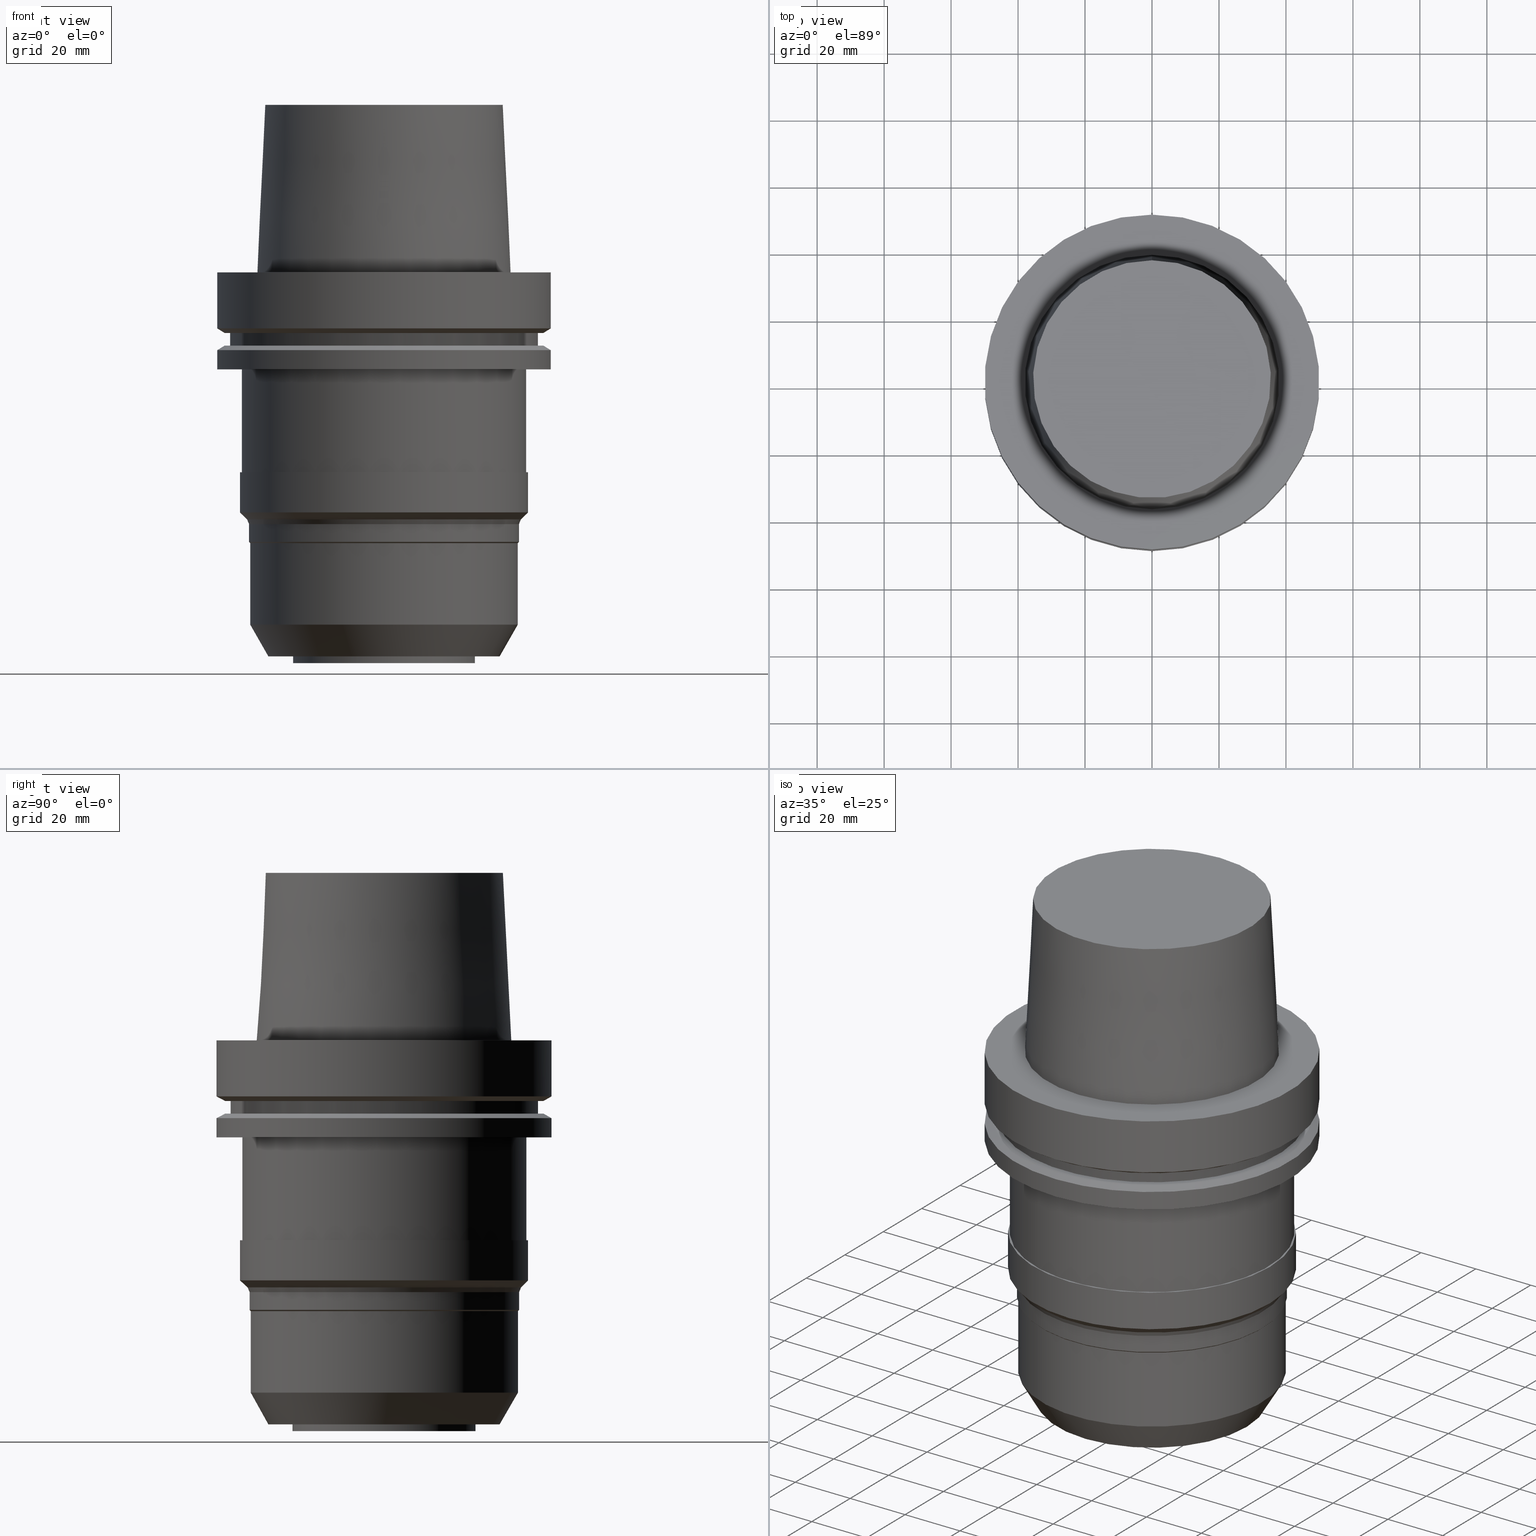
[diagram: canonical four-view strip — front | top / right | iso, engineering-drawing reading convention]
A machine part, canonical four-view strip (front | top / right | iso — engineering-drawing reading convention). The complete STEP part file that produces these views, byte-faithful:
ISO-10303-21;
HEADER;
FILE_DESCRIPTION((''),'1');
FILE_NAME('V:/90_\X2\53D65F9730C730FC30BF\X0\/00_\X2\6DE18DEF30C730FC30BF\X0\/ALL/HSK-BKUS\X2\52A05DE556F3\X0\_201801/HSK-A100-MEGADS/HSK-A100-MEGA1.250DS-4.5.stp','2018-02-01T04:57:53',(''),(''),'Spatial Interop R21 SP3','Kubotek KeyCreator 2011 V10.0.2 (22737)',' ');
FILE_SCHEMA(('automotive_design'));
ENDSEC;
DATA;
#1=MECHANICAL_DESIGN_GEOMETRIC_PRESENTATION_REPRESENTATION(' ',(#10,#11,#12,#13,#14,#15,#16,#17,#18,#19,#20,#21,#22,#23,#24,#25,#26,#27,#28,#29,#30,#31,#32,#33,#34,#35,#36,#37,#38,#39,#40,#41,#42,#43,#44,#45,#46,#47,#48,#49,#50,#51,#52,#53,#54,#55),#6);
#2=PRODUCT_DEFINITION_CONTEXT('',#56,'design');
#3=APPLICATION_PROTOCOL_DEFINITION('INTERNATIONAL STANDARD','automotive_design',1994,#56);
#4=PRODUCT_CATEGORY_RELATIONSHIP('NONE','NONE',#57,#58);
#5=SHAPE_DEFINITION_REPRESENTATION(#59,#60);
#6= (GEOMETRIC_REPRESENTATION_CONTEXT(3)GLOBAL_UNCERTAINTY_ASSIGNED_CONTEXT((#63))GLOBAL_UNIT_ASSIGNED_CONTEXT((#65,#66,#67))REPRESENTATION_CONTEXT('NONE','WORKSPACE'));
#10=STYLED_ITEM('',(#69,#70),#71);
#11=STYLED_ITEM('',(#72,#73),#74);
#12=STYLED_ITEM('',(#75),#76);
#13=STYLED_ITEM('',(#77),#78);
#14=STYLED_ITEM('',(#79,#80),#81);
#15=STYLED_ITEM('',(#82,#83),#84);
#16=STYLED_ITEM('',(#85,#86),#87);
#17=STYLED_ITEM('',(#88),#89);
#18=STYLED_ITEM('',(#90),#91);
#19=STYLED_ITEM('',(#92,#93),#94);
#20=STYLED_ITEM('',(#95),#96);
#21=STYLED_ITEM('',(#97,#98),#99);
#22=STYLED_ITEM('',(#100,#101),#102);
#23=STYLED_ITEM('',(#103,#104),#105);
#24=STYLED_ITEM('',(#106),#107);
#25=STYLED_ITEM('',(#108),#109);
#26=STYLED_ITEM('',(#110),#111);
#27=STYLED_ITEM('',(#112,#113),#114);
#28=STYLED_ITEM('',(#115,#116),#117);
#29=STYLED_ITEM('',(#118,#119),#120);
#30=STYLED_ITEM('',(#121,#122),#123);
#31=STYLED_ITEM('',(#124,#125),#126);
#32=STYLED_ITEM('',(#127,#128),#129);
#33=STYLED_ITEM('',(#130),#131);
#34=STYLED_ITEM('',(#132),#133);
#35=STYLED_ITEM('',(#134,#135),#136);
#36=STYLED_ITEM('',(#137,#138),#139);
#37=STYLED_ITEM('',(#140),#141);
#38=STYLED_ITEM('',(#142),#143);
#39=STYLED_ITEM('',(#144),#145);
#40=STYLED_ITEM('',(#146),#147);
#41=STYLED_ITEM('',(#148),#149);
#42=STYLED_ITEM('',(#150),#151);
#43=STYLED_ITEM('',(#152),#153);
#44=STYLED_ITEM('',(#154,#155),#156);
#45=STYLED_ITEM('',(#157,#158),#159);
#46=STYLED_ITEM('',(#160,#161),#162);
#47=STYLED_ITEM('',(#163),#164);
#48=STYLED_ITEM('',(#165,#166),#167);
#49=STYLED_ITEM('',(#168),#169);
#50=STYLED_ITEM('',(#170),#171);
#51=STYLED_ITEM('',(#172,#173),#174);
#52=STYLED_ITEM('',(#175,#176),#177);
#53=STYLED_ITEM('',(#178),#179);
#54=STYLED_ITEM('',(#180),#181);
#55=STYLED_ITEM('',(#182,#183),#184);
#56=APPLICATION_CONTEXT(' ');
#57=PRODUCT_CATEGORY('part','NONE');
#58=PRODUCT_RELATED_PRODUCT_CATEGORY('detail',' ',(#185));
#59=PRODUCT_DEFINITION_SHAPE('NONE','NONE',#186);
#60=ADVANCED_BREP_SHAPE_REPRESENTATION('Unnamed[1]',(#184,#187),#6);
#63=UNCERTAINTY_MEASURE_WITH_UNIT(LENGTH_MEASURE(1.0E-006),#65,'','');
#65= (CONVERSION_BASED_UNIT('MILLIMETRE',#190)LENGTH_UNIT()NAMED_UNIT(#193));
#66= (NAMED_UNIT(#195)PLANE_ANGLE_UNIT()SI_UNIT($,.RADIAN.));
#67= (NAMED_UNIT(#195)SOLID_ANGLE_UNIT()SI_UNIT($,.STERADIAN.));
#69=PRESENTATION_STYLE_ASSIGNMENT((#201));
#70=PRESENTATION_STYLE_ASSIGNMENT((#202));
#71=ADVANCED_FACE('Unnamed[1]',(#203,#204),#205,.T.);
#72=PRESENTATION_STYLE_ASSIGNMENT((#206));
#73=PRESENTATION_STYLE_ASSIGNMENT((#207));
#74=ADVANCED_FACE('Unnamed[1]',(#208,#209),#210,.T.);
#75=PRESENTATION_STYLE_ASSIGNMENT((#211));
#76=EDGE_CURVE('Unnamed[1]',#212,#212,#213,.T.);
#77=PRESENTATION_STYLE_ASSIGNMENT((#214));
#78=EDGE_CURVE('Unnamed[1]',#215,#215,#216,.T.);
#79=PRESENTATION_STYLE_ASSIGNMENT((#217));
#80=PRESENTATION_STYLE_ASSIGNMENT((#218));
#81=ADVANCED_FACE('Unnamed[1]',(#219,#220),#221,.T.);
#82=PRESENTATION_STYLE_ASSIGNMENT((#222));
#83=PRESENTATION_STYLE_ASSIGNMENT((#223));
#84=ADVANCED_FACE('Unnamed[1]',(#224,#225),#226,.T.);
#85=PRESENTATION_STYLE_ASSIGNMENT((#227));
#86=PRESENTATION_STYLE_ASSIGNMENT((#228));
#87=ADVANCED_FACE('Unnamed[1]',(#229,#230),#231,.T.);
#88=PRESENTATION_STYLE_ASSIGNMENT((#232));
#89=EDGE_CURVE('Unnamed[1]',#233,#233,#234,.T.);
#90=PRESENTATION_STYLE_ASSIGNMENT((#235));
#91=EDGE_CURVE('Unnamed[1]',#236,#236,#237,.T.);
#92=PRESENTATION_STYLE_ASSIGNMENT((#238));
#93=PRESENTATION_STYLE_ASSIGNMENT((#239));
#94=ADVANCED_FACE('Unnamed[1]',(#240,#241),#242,.T.);
#95=PRESENTATION_STYLE_ASSIGNMENT((#243));
#96=EDGE_CURVE('Unnamed[1]',#244,#244,#245,.T.);
#97=PRESENTATION_STYLE_ASSIGNMENT((#246));
#98=PRESENTATION_STYLE_ASSIGNMENT((#247));
#99=ADVANCED_FACE('Unnamed[1]',(#248,#249),#250,.T.);
#100=PRESENTATION_STYLE_ASSIGNMENT((#251));
#101=PRESENTATION_STYLE_ASSIGNMENT((#252));
#102=ADVANCED_FACE('Unnamed[1]',(#253,#254),#255,.T.);
#103=PRESENTATION_STYLE_ASSIGNMENT((#256));
#104=PRESENTATION_STYLE_ASSIGNMENT((#257));
#105=ADVANCED_FACE('Unnamed[1]',(#258,#259),#260,.T.);
#106=PRESENTATION_STYLE_ASSIGNMENT((#261));
#107=EDGE_CURVE('Unnamed[1]',#262,#262,#263,.T.);
#108=PRESENTATION_STYLE_ASSIGNMENT((#264));
#109=EDGE_CURVE('Unnamed[1]',#265,#265,#266,.T.);
#110=PRESENTATION_STYLE_ASSIGNMENT((#267));
#111=EDGE_CURVE('Unnamed[1]',#268,#268,#269,.T.);
#112=PRESENTATION_STYLE_ASSIGNMENT((#270));
#113=PRESENTATION_STYLE_ASSIGNMENT((#271));
#114=ADVANCED_FACE('Unnamed[1]',(#272,#273),#274,.T.);
#115=PRESENTATION_STYLE_ASSIGNMENT((#275));
#116=PRESENTATION_STYLE_ASSIGNMENT((#276));
#117=ADVANCED_FACE('Unnamed[1]',(#277,#278),#279,.T.);
#118=PRESENTATION_STYLE_ASSIGNMENT((#280));
#119=PRESENTATION_STYLE_ASSIGNMENT((#281));
#120=ADVANCED_FACE('Unnamed[1]',(#282,#283),#284,.T.);
#121=PRESENTATION_STYLE_ASSIGNMENT((#285));
#122=PRESENTATION_STYLE_ASSIGNMENT((#286));
#123=ADVANCED_FACE('Unnamed[1]',(#287,#288),#289,.T.);
#124=PRESENTATION_STYLE_ASSIGNMENT((#290));
#125=PRESENTATION_STYLE_ASSIGNMENT((#291));
#126=ADVANCED_FACE('Unnamed[1]',(#292,#293),#294,.T.);
#127=PRESENTATION_STYLE_ASSIGNMENT((#295));
#128=PRESENTATION_STYLE_ASSIGNMENT((#296));
#129=ADVANCED_FACE('Unnamed[1]',(#297,#298),#299,.T.);
#130=PRESENTATION_STYLE_ASSIGNMENT((#300));
#131=EDGE_CURVE('Unnamed[1]',#301,#301,#302,.T.);
#132=PRESENTATION_STYLE_ASSIGNMENT((#303));
#133=EDGE_CURVE('Unnamed[1]',#304,#304,#305,.T.);
#134=PRESENTATION_STYLE_ASSIGNMENT((#306));
#135=PRESENTATION_STYLE_ASSIGNMENT((#307));
#136=ADVANCED_FACE('Unnamed[1]',(#308,#309),#310,.T.);
#137=PRESENTATION_STYLE_ASSIGNMENT((#311));
#138=PRESENTATION_STYLE_ASSIGNMENT((#312));
#139=ADVANCED_FACE('Unnamed[1]',(#313),#314,.T.);
#140=PRESENTATION_STYLE_ASSIGNMENT((#315));
#141=EDGE_CURVE('Unnamed[1]',#316,#316,#317,.T.);
#142=PRESENTATION_STYLE_ASSIGNMENT((#318));
#143=EDGE_CURVE('Unnamed[1]',#319,#319,#320,.T.);
#144=PRESENTATION_STYLE_ASSIGNMENT((#321));
#145=EDGE_CURVE('Unnamed[1]',#322,#322,#323,.T.);
#146=PRESENTATION_STYLE_ASSIGNMENT((#324));
#147=EDGE_CURVE('Unnamed[1]',#325,#325,#326,.T.);
#148=PRESENTATION_STYLE_ASSIGNMENT((#327));
#149=EDGE_CURVE('Unnamed[1]',#328,#328,#329,.T.);
#150=PRESENTATION_STYLE_ASSIGNMENT((#330));
#151=EDGE_CURVE('Unnamed[1]',#331,#331,#332,.T.);
#152=PRESENTATION_STYLE_ASSIGNMENT((#333));
#153=EDGE_CURVE('Unnamed[1]',#334,#334,#335,.T.);
#154=PRESENTATION_STYLE_ASSIGNMENT((#336));
#155=PRESENTATION_STYLE_ASSIGNMENT((#337));
#156=ADVANCED_FACE('Unnamed[1]',(#338),#339,.T.);
#157=PRESENTATION_STYLE_ASSIGNMENT((#340));
#158=PRESENTATION_STYLE_ASSIGNMENT((#341));
#159=ADVANCED_FACE('Unnamed[1]',(#342,#343),#344,.T.);
#160=PRESENTATION_STYLE_ASSIGNMENT((#345));
#161=PRESENTATION_STYLE_ASSIGNMENT((#346));
#162=ADVANCED_FACE('Unnamed[1]',(#347,#348),#349,.T.);
#163=PRESENTATION_STYLE_ASSIGNMENT((#350));
#164=EDGE_CURVE('Unnamed[1]',#351,#351,#352,.T.);
#165=PRESENTATION_STYLE_ASSIGNMENT((#353));
#166=PRESENTATION_STYLE_ASSIGNMENT((#354));
#167=ADVANCED_FACE('Unnamed[1]',(#355,#356),#357,.T.);
#168=PRESENTATION_STYLE_ASSIGNMENT((#358));
#169=EDGE_CURVE('Unnamed[1]',#359,#359,#360,.T.);
#170=PRESENTATION_STYLE_ASSIGNMENT((#361));
#171=EDGE_CURVE('Unnamed[1]',#362,#362,#363,.T.);
#172=PRESENTATION_STYLE_ASSIGNMENT((#364));
#173=PRESENTATION_STYLE_ASSIGNMENT((#365));
#174=ADVANCED_FACE('Unnamed[1]',(#366,#367),#368,.T.);
#175=PRESENTATION_STYLE_ASSIGNMENT((#369));
#176=PRESENTATION_STYLE_ASSIGNMENT((#370));
#177=ADVANCED_FACE('Unnamed[1]',(#371,#372),#373,.T.);
#178=PRESENTATION_STYLE_ASSIGNMENT((#374));
#179=EDGE_CURVE('Unnamed[1]',#375,#375,#376,.T.);
#180=PRESENTATION_STYLE_ASSIGNMENT((#377));
#181=EDGE_CURVE('Unnamed[1]',#378,#378,#379,.T.);
#182=PRESENTATION_STYLE_ASSIGNMENT((#380));
#183=PRESENTATION_STYLE_ASSIGNMENT((#381));
#184=MANIFOLD_SOLID_BREP('Unnamed[1]',#382);
#185=PRODUCT('Unnamed[1]','Unnamed[1]','PART-Unnamed[1]-DESC',(#383));
#186=PRODUCT_DEFINITION('NONE','NONE',#384,#2);
#187=AXIS2_PLACEMENT_3D('',#385,#386,#387);
#190=LENGTH_MEASURE_WITH_UNIT(LENGTH_MEASURE(1.0),#388);
#193=DIMENSIONAL_EXPONENTS(1.0,0.0,0.0,0.0,0.0,0.0,0.0);
#195=DIMENSIONAL_EXPONENTS(0.0,0.0,0.0,0.0,0.0,0.0,0.0);
#201=SURFACE_STYLE_USAGE(.BOTH.,#389);
#202=CURVE_STYLE('',#390,POSITIVE_LENGTH_MEASURE(1000.0),#391);
#203=FACE_BOUND('',#392,.T.);
#204=FACE_BOUND('',#393,.T.);
#205=CYLINDRICAL_SURFACE('',#394,50.0);
#206=SURFACE_STYLE_USAGE(.BOTH.,#395);
#207=CURVE_STYLE('',#396,POSITIVE_LENGTH_MEASURE(1000.0),#397);
#208=FACE_OUTER_BOUND('',#398,.T.);
#209=FACE_BOUND('',#399,.T.);
#210=PLANE('',#400);
#211=CURVE_STYLE('',#401,POSITIVE_LENGTH_MEASURE(1000.0),#402);
#212=VERTEX_POINT('',#403);
#213=CIRCLE('',#404,27.336);
#214=CURVE_STYLE('',#405,POSITIVE_LENGTH_MEASURE(1000.0),#406);
#215=VERTEX_POINT('',#407);
#216=CIRCLE('',#408,50.0);
#217=SURFACE_STYLE_USAGE(.BOTH.,#409);
#218=CURVE_STYLE('',#410,POSITIVE_LENGTH_MEASURE(1000.0),#411);
#219=FACE_BOUND('',#412,.T.);
#220=FACE_BOUND('',#413,.T.);
#221=CYLINDRICAL_SURFACE('',#414,40.3500000000002);
#222=SURFACE_STYLE_USAGE(.BOTH.,#415);
#223=CURVE_STYLE('',#416,POSITIVE_LENGTH_MEASURE(1000.0),#417);
#224=FACE_BOUND('',#418,.T.);
#225=FACE_BOUND('',#419,.T.);
#226=CONICAL_SURFACE('',#420,37.2575822913694,0.523598775598427);
#227=SURFACE_STYLE_USAGE(.BOTH.,#421);
#228=CURVE_STYLE('',#422,POSITIVE_LENGTH_MEASURE(1000.0),#423);
#229=FACE_BOUND('',#424,.T.);
#230=FACE_BOUND('',#425,.T.);
#231=CONICAL_SURFACE('',#426,40.1750000000001,0.785398163396606);
#232=CURVE_STYLE('',#427,POSITIVE_LENGTH_MEASURE(1000.0),#428);
#233=VERTEX_POINT('',#429);
#234=CIRCLE('',#430,47.62259526);
#235=CURVE_STYLE('',#431,POSITIVE_LENGTH_MEASURE(1000.0),#432);
#236=VERTEX_POINT('',#433);
#237=CIRCLE('',#434,35.5000000015618);
#238=SURFACE_STYLE_USAGE(.BOTH.,#435);
#239=CURVE_STYLE('',#436,POSITIVE_LENGTH_MEASURE(1000.0),#437);
#240=FACE_BOUND('',#438,.T.);
#241=FACE_BOUND('',#439,.T.);
#242=CONICAL_SURFACE('',#440,41.9678932188138,0.785398163397624);
#243=CURVE_STYLE('',#441,POSITIVE_LENGTH_MEASURE(1000.0),#442);
#244=VERTEX_POINT('',#443);
#245=CIRCLE('',#444,27.336);
#246=SURFACE_STYLE_USAGE(.BOTH.,#445);
#247=CURVE_STYLE('',#446,POSITIVE_LENGTH_MEASURE(1000.0),#447);
#248=FACE_OUTER_BOUND('',#448,.T.);
#249=FACE_BOUND('',#449,.T.);
#250=PLANE('',#450);
#251=SURFACE_STYLE_USAGE(.BOTH.,#451);
#252=CURVE_STYLE('',#452,POSITIVE_LENGTH_MEASURE(1000.0),#453);
#253=FACE_BOUND('',#454,.T.);
#254=FACE_BOUND('',#455,.T.);
#255=CYLINDRICAL_SURFACE('',#456,43.0000000000001);
#256=SURFACE_STYLE_USAGE(.BOTH.,#457);
#257=CURVE_STYLE('',#458,POSITIVE_LENGTH_MEASURE(1000.0),#459);
#258=FACE_BOUND('',#460,.T.);
#259=FACE_BOUND('',#461,.T.);
#260=CONICAL_SURFACE('',#462,48.81129763,1.04719755328238);
#261=CURVE_STYLE('',#463,POSITIVE_LENGTH_MEASURE(1000.0),#464);
#262=VERTEX_POINT('',#465);
#263=CIRCLE('',#466,43.0000000000001);
#264=CURVE_STYLE('',#467,POSITIVE_LENGTH_MEASURE(1000.0),#468);
#265=VERTEX_POINT('',#469);
#266=CIRCLE('',#470,37.9999999999349);
#267=CURVE_STYLE('',#471,POSITIVE_LENGTH_MEASURE(1000.0),#472);
#268=VERTEX_POINT('',#473);
#269=CIRCLE('',#474,50.0);
#270=SURFACE_STYLE_USAGE(.BOTH.,#475);
#271=CURVE_STYLE('',#476,POSITIVE_LENGTH_MEASURE(1000.0),#477);
#272=FACE_BOUND('',#478,.T.);
#273=FACE_OUTER_BOUND('',#479,.T.);
#274=PLANE('',#480);
#275=SURFACE_STYLE_USAGE(.BOTH.,#481);
#276=CURVE_STYLE('',#482,POSITIVE_LENGTH_MEASURE(1000.0),#483);
#277=FACE_BOUND('',#484,.T.);
#278=FACE_BOUND('',#485,.T.);
#279=CYLINDRICAL_SURFACE('',#486,50.0);
#280=SURFACE_STYLE_USAGE(.BOTH.,#487);
#281=CURVE_STYLE('',#488,POSITIVE_LENGTH_MEASURE(1000.0),#489);
#282=FACE_BOUND('',#490,.T.);
#283=FACE_OUTER_BOUND('',#491,.T.);
#284=PLANE('',#492);
#285=SURFACE_STYLE_USAGE(.BOTH.,#493);
#286=CURVE_STYLE('',#494,POSITIVE_LENGTH_MEASURE(1000.0),#495);
#287=FACE_OUTER_BOUND('',#496,.T.);
#288=FACE_BOUND('',#497,.T.);
#289=PLANE('',#498);
#290=SURFACE_STYLE_USAGE(.BOTH.,#499);
#291=CURVE_STYLE('',#500,POSITIVE_LENGTH_MEASURE(1000.0),#501);
#292=FACE_BOUND('',#502,.T.);
#293=FACE_BOUND('',#503,.T.);
#294=CYLINDRICAL_SURFACE('',#504,40.0000000000001);
#295=SURFACE_STYLE_USAGE(.BOTH.,#505);
#296=CURVE_STYLE('',#506,POSITIVE_LENGTH_MEASURE(1000.0),#507);
#297=FACE_BOUND('',#508,.T.);
#298=FACE_BOUND('',#509,.T.);
#299=CYLINDRICAL_SURFACE('',#510,27.336);
#300=CURVE_STYLE('',#511,POSITIVE_LENGTH_MEASURE(1000.0),#512);
#301=VERTEX_POINT('',#513);
#302=CIRCLE('',#514,46.0);
#303=CURVE_STYLE('',#515,POSITIVE_LENGTH_MEASURE(1000.0),#516);
#304=VERTEX_POINT('',#517);
#305=CIRCLE('',#518,47.62259526);
#306=SURFACE_STYLE_USAGE(.BOTH.,#519);
#307=CURVE_STYLE('',#520,POSITIVE_LENGTH_MEASURE(1000.0),#521);
#308=FACE_BOUND('',#522,.T.);
#309=FACE_OUTER_BOUND('',#523,.T.);
#310=PLANE('',#524);
#311=SURFACE_STYLE_USAGE(.BOTH.,#525);
#312=CURVE_STYLE('',#526,POSITIVE_LENGTH_MEASURE(1000.0),#527);
#313=FACE_OUTER_BOUND('',#528,.T.);
#314=PLANE('',#529);
#315=CURVE_STYLE('',#530,POSITIVE_LENGTH_MEASURE(1000.0),#531);
#316=VERTEX_POINT('',#532);
#317=CIRCLE('',#533,40.0000000000001);
#318=CURVE_STYLE('',#534,POSITIVE_LENGTH_MEASURE(1000.0),#535);
#319=VERTEX_POINT('',#536);
#320=CIRCLE('',#537,34.5151645827388);
#321=CURVE_STYLE('',#538,POSITIVE_LENGTH_MEASURE(1000.0),#539);
#322=VERTEX_POINT('',#540);
#323=CIRCLE('',#541,40.9357864376274);
#324=CURVE_STYLE('',#542,POSITIVE_LENGTH_MEASURE(1000.0),#543);
#325=VERTEX_POINT('',#544);
#326=CIRCLE('',#545,50.0);
#327=CURVE_STYLE('',#546,POSITIVE_LENGTH_MEASURE(1000.0),#547);
#328=VERTEX_POINT('',#548);
#329=CIRCLE('',#549,42.5);
#330=CURVE_STYLE('',#550,POSITIVE_LENGTH_MEASURE(1000.0),#551);
#331=VERTEX_POINT('',#552);
#332=CIRCLE('',#553,43.0000000000002);
#333=CURVE_STYLE('',#554,POSITIVE_LENGTH_MEASURE(1000.0),#555);
#334=VERTEX_POINT('',#556);
#335=CIRCLE('',#557,42.5000000000001);
#336=SURFACE_STYLE_USAGE(.BOTH.,#558);
#337=CURVE_STYLE('',#559,POSITIVE_LENGTH_MEASURE(1000.0),#560);
#338=FACE_OUTER_BOUND('',#561,.T.);
#339=PLANE('',#562);
#340=SURFACE_STYLE_USAGE(.BOTH.,#563);
#341=CURVE_STYLE('',#564,POSITIVE_LENGTH_MEASURE(1000.0),#565);
#342=FACE_BOUND('',#566,.T.);
#343=FACE_BOUND('',#567,.T.);
#344=CYLINDRICAL_SURFACE('',#568,42.5000000000001);
#345=SURFACE_STYLE_USAGE(.BOTH.,#569);
#346=CURVE_STYLE('',#570,POSITIVE_LENGTH_MEASURE(1000.0),#571);
#347=FACE_BOUND('',#572,.T.);
#348=FACE_BOUND('',#573,.T.);
#349=CONICAL_SURFACE('',#574,36.7500000007484,0.0499583956894843);
#350=CURVE_STYLE('',#575,POSITIVE_LENGTH_MEASURE(1000.0),#576);
#351=VERTEX_POINT('',#577);
#352=CIRCLE('',#578,46.0);
#353=SURFACE_STYLE_USAGE(.BOTH.,#579);
#354=CURVE_STYLE('',#580,POSITIVE_LENGTH_MEASURE(1000.0),#581);
#355=FACE_BOUND('',#582,.T.);
#356=FACE_BOUND('',#583,.T.);
#357=CONICAL_SURFACE('',#584,48.81129763,1.04719755328238);
#358=CURVE_STYLE('',#585,POSITIVE_LENGTH_MEASURE(1000.0),#586);
#359=VERTEX_POINT('',#587);
#360=CIRCLE('',#588,50.0);
#361=CURVE_STYLE('',#589,POSITIVE_LENGTH_MEASURE(1000.0),#590);
#362=VERTEX_POINT('',#591);
#363=CIRCLE('',#592,40.3500000000003);
#364=SURFACE_STYLE_USAGE(.BOTH.,#593);
#365=CURVE_STYLE('',#594,POSITIVE_LENGTH_MEASURE(1000.0),#595);
#366=FACE_BOUND('',#596,.T.);
#367=FACE_BOUND('',#597,.T.);
#368=CONICAL_SURFACE('',#598,40.6428932188139,0.392699081698825);
#369=SURFACE_STYLE_USAGE(.BOTH.,#599);
#370=CURVE_STYLE('',#600,POSITIVE_LENGTH_MEASURE(1000.0),#601);
#371=FACE_BOUND('',#602,.T.);
#372=FACE_BOUND('',#603,.T.);
#373=CYLINDRICAL_SURFACE('',#604,46.0);
#374=CURVE_STYLE('',#605,POSITIVE_LENGTH_MEASURE(1000.0),#606);
#375=VERTEX_POINT('',#607);
#376=CIRCLE('',#608,40.0000000000001);
#377=CURVE_STYLE('',#609,POSITIVE_LENGTH_MEASURE(1000.0),#610);
#378=VERTEX_POINT('',#611);
#379=CIRCLE('',#612,40.3500000000001);
#380=SURFACE_STYLE_USAGE(.BOTH.,#613);
#381=CURVE_STYLE('',#614,POSITIVE_LENGTH_MEASURE(1000.0),#615);
#382=CLOSED_SHELL('',(#156,#162,#99,#71,#105,#114,#177,#74,#167,#117,#120,#159,#123,#102,#94,#174,#81,#87,#126,#84,#136,#129,#139));
#383=PRODUCT_CONTEXT('',#56,'mechanical');
#384=PRODUCT_DEFINITION_FORMATION_WITH_SPECIFIED_SOURCE(' ','NONE',#185,.NOT_KNOWN.);
#385=CARTESIAN_POINT('',(0.0,0.0,0.0));
#386=DIRECTION('',(0.0,0.0,1.0));
#387=DIRECTION('',(1.0,0.0,0.0));
#388= (NAMED_UNIT(#193)LENGTH_UNIT()SI_UNIT(.MILLI.,.METRE.));
#389=SURFACE_SIDE_STYLE('',(#617));
#390=DRAUGHTING_PRE_DEFINED_CURVE_FONT('continuous');
#391=COLOUR_RGB('',0.0,1.0,0.0);
#392=EDGE_LOOP('',(#618));
#393=EDGE_LOOP('',(#619));
#394=AXIS2_PLACEMENT_3D('',#620,#621,#622);
#395=SURFACE_SIDE_STYLE('',(#623));
#396=DRAUGHTING_PRE_DEFINED_CURVE_FONT('continuous');
#397=COLOUR_RGB('',0.0,1.0,0.0);
#398=EDGE_LOOP('',(#624));
#399=EDGE_LOOP('',(#625));
#400=AXIS2_PLACEMENT_3D('',#626,#627,#628);
#401=DRAUGHTING_PRE_DEFINED_CURVE_FONT('continuous');
#402=COLOUR_RGB('',0.0,1.0,0.0);
#403=CARTESIAN_POINT('',(7.14581407302481E-015,27.336,-116.7));
#404=AXIS2_PLACEMENT_3D('',#629,#630,#631);
#405=DRAUGHTING_PRE_DEFINED_CURVE_FONT('continuous');
#406=COLOUR_RGB('',0.0,1.0,0.0);
#407=CARTESIAN_POINT('',(-1.81547968506605E-031,50.0,-9.76766004263236E-016));
#408=AXIS2_PLACEMENT_3D('',#632,#633,#634);
#409=SURFACE_SIDE_STYLE('',(#635));
#410=DRAUGHTING_PRE_DEFINED_CURVE_FONT('continuous');
#411=COLOUR_RGB('',0.0,1.0,0.0);
#412=EDGE_LOOP('',(#636));
#413=EDGE_LOOP('',(#637));
#414=AXIS2_PLACEMENT_3D('',#638,#639,#640);
#415=SURFACE_SIDE_STYLE('',(#641));
#416=DRAUGHTING_PRE_DEFINED_CURVE_FONT('continuous');
#417=COLOUR_RGB('',0.0,1.0,0.0);
#418=EDGE_LOOP('',(#642));
#419=EDGE_LOOP('',(#643));
#420=AXIS2_PLACEMENT_3D('',#644,#645,#646);
#421=SURFACE_SIDE_STYLE('',(#647));
#422=DRAUGHTING_PRE_DEFINED_CURVE_FONT('continuous');
#423=COLOUR_RGB('',0.0,1.0,0.0);
#424=EDGE_LOOP('',(#648));
#425=EDGE_LOOP('',(#649));
#426=AXIS2_PLACEMENT_3D('',#650,#651,#652);
#427=DRAUGHTING_PRE_DEFINED_CURVE_FONT('continuous');
#428=COLOUR_RGB('',0.0,1.0,0.0);
#429=CARTESIAN_POINT('',(1.10983616172729E-015,47.62259526,-18.125));
#430=AXIS2_PLACEMENT_3D('',#653,#654,#655);
#431=DRAUGHTING_PRE_DEFINED_CURVE_FONT('continuous');
#432=COLOUR_RGB('',0.0,1.0,0.0);
#433=CARTESIAN_POINT('',(-3.06161699786838E-015,35.5000000015618,50.0));
#434=AXIS2_PLACEMENT_3D('',#656,#657,#658);
#435=SURFACE_SIDE_STYLE('',(#659));
#436=DRAUGHTING_PRE_DEFINED_CURVE_FONT('continuous');
#437=COLOUR_RGB('',0.0,1.0,0.0);
#438=EDGE_LOOP('',(#660));
#439=EDGE_LOOP('',(#661));
#440=AXIS2_PLACEMENT_3D('',#662,#663,#664);
#441=DRAUGHTING_PRE_DEFINED_CURVE_FONT('continuous');
#442=COLOUR_RGB('',0.0,1.0,0.0);
#443=CARTESIAN_POINT('',(7.02334939311008E-015,27.336,-114.7));
#444=AXIS2_PLACEMENT_3D('',#665,#666,#667);
#445=SURFACE_SIDE_STYLE('',(#668));
#446=DRAUGHTING_PRE_DEFINED_CURVE_FONT('continuous');
#447=COLOUR_RGB('',0.0,1.0,0.0);
#448=EDGE_LOOP('',(#669));
#449=EDGE_LOOP('',(#670));
#450=AXIS2_PLACEMENT_3D('',#671,#672,#673);
#451=SURFACE_SIDE_STYLE('',(#674));
#452=DRAUGHTING_PRE_DEFINED_CURVE_FONT('continuous');
#453=COLOUR_RGB('',0.0,1.0,0.0);
#454=EDGE_LOOP('',(#675));
#455=EDGE_LOOP('',(#676));
#456=AXIS2_PLACEMENT_3D('',#677,#678,#679);
#457=SURFACE_SIDE_STYLE('',(#680));
#458=DRAUGHTING_PRE_DEFINED_CURVE_FONT('continuous');
#459=COLOUR_RGB('',0.0,1.0,0.0);
#460=EDGE_LOOP('',(#681));
#461=EDGE_LOOP('',(#682));
#462=AXIS2_PLACEMENT_3D('',#683,#684,#685);
#463=DRAUGHTING_PRE_DEFINED_CURVE_FONT('continuous');
#464=COLOUR_RGB('',0.0,1.0,0.0);
#465=CARTESIAN_POINT('',(3.65557069545482E-015,43.0000000000001,-59.6999999999995));
#466=AXIS2_PLACEMENT_3D('',#686,#687,#688);
#467=DRAUGHTING_PRE_DEFINED_CURVE_FONT('continuous');
#468=COLOUR_RGB('',0.0,1.0,0.0);
#469=CARTESIAN_POINT('',(-3.3636548776863E-032,37.9999999999349,-2.44634216324803E-015));
#470=AXIS2_PLACEMENT_3D('',#689,#690,#691);
#471=DRAUGHTING_PRE_DEFINED_CURVE_FONT('continuous');
#472=COLOUR_RGB('',0.0,1.0,0.0);
#473=CARTESIAN_POINT('',(1.0257889421431E-015,50.0,-16.75240474));
#474=AXIS2_PLACEMENT_3D('',#692,#693,#694);
#475=SURFACE_SIDE_STYLE('',(#695));
#476=DRAUGHTING_PRE_DEFINED_CURVE_FONT('continuous');
#477=COLOUR_RGB('',0.0,1.0,0.0);
#478=EDGE_LOOP('',(#696));
#479=EDGE_LOOP('',(#697));
#480=AXIS2_PLACEMENT_3D('',#698,#699,#700);
#481=SURFACE_SIDE_STYLE('',(#701));
#482=DRAUGHTING_PRE_DEFINED_CURVE_FONT('continuous');
#483=COLOUR_RGB('',0.0,1.0,0.0);
#484=EDGE_LOOP('',(#702));
#485=EDGE_LOOP('',(#703));
#486=AXIS2_PLACEMENT_3D('',#704,#705,#706);
#487=SURFACE_SIDE_STYLE('',(#707));
#488=DRAUGHTING_PRE_DEFINED_CURVE_FONT('continuous');
#489=COLOUR_RGB('',0.0,1.0,0.0);
#490=EDGE_LOOP('',(#708));
#491=EDGE_LOOP('',(#709));
#492=AXIS2_PLACEMENT_3D('',#710,#711,#712);
#493=SURFACE_SIDE_STYLE('',(#713));
#494=DRAUGHTING_PRE_DEFINED_CURVE_FONT('continuous');
#495=COLOUR_RGB('',0.0,1.0,0.0);
#496=EDGE_LOOP('',(#714));
#497=EDGE_LOOP('',(#715));
#498=AXIS2_PLACEMENT_3D('',#716,#717,#718);
#499=SURFACE_SIDE_STYLE('',(#719));
#500=DRAUGHTING_PRE_DEFINED_CURVE_FONT('continuous');
#501=COLOUR_RGB('',0.0,1.0,0.0);
#502=EDGE_LOOP('',(#720));
#503=EDGE_LOOP('',(#721));
#504=AXIS2_PLACEMENT_3D('',#722,#723,#724);
#505=SURFACE_SIDE_STYLE('',(#725));
#506=DRAUGHTING_PRE_DEFINED_CURVE_FONT('continuous');
#507=COLOUR_RGB('',0.0,1.0,0.0);
#508=EDGE_LOOP('',(#726));
#509=EDGE_LOOP('',(#727));
#510=AXIS2_PLACEMENT_3D('',#728,#729,#730);
#511=DRAUGHTING_PRE_DEFINED_CURVE_FONT('continuous');
#512=COLOUR_RGB('',0.0,1.0,0.0);
#513=CARTESIAN_POINT('',(1.33945743656742E-015,46.0,-21.875));
#514=AXIS2_PLACEMENT_3D('',#731,#732,#733);
#515=DRAUGHTING_PRE_DEFINED_CURVE_FONT('continuous');
#516=COLOUR_RGB('',0.0,1.0,0.0);
#517=CARTESIAN_POINT('',(1.33945743656742E-015,47.62259526,-21.875));
#518=AXIS2_PLACEMENT_3D('',#734,#735,#736);
#519=SURFACE_SIDE_STYLE('',(#737));
#520=DRAUGHTING_PRE_DEFINED_CURVE_FONT('continuous');
#521=COLOUR_RGB('',0.0,1.0,0.0);
#522=EDGE_LOOP('',(#738));
#523=EDGE_LOOP('',(#739));
#524=AXIS2_PLACEMENT_3D('',#740,#741,#742);
#525=SURFACE_SIDE_STYLE('',(#743));
#526=DRAUGHTING_PRE_DEFINED_CURVE_FONT('continuous');
#527=COLOUR_RGB('',0.0,1.0,0.0);
#528=EDGE_LOOP('',(#744));
#529=AXIS2_PLACEMENT_3D('',#745,#746,#747);
#530=DRAUGHTING_PRE_DEFINED_CURVE_FONT('continuous');
#531=COLOUR_RGB('',0.0,1.0,0.0);
#532=CARTESIAN_POINT('',(4.95063468555321E-015,40.0000000000001,-80.8500000000005));
#533=AXIS2_PLACEMENT_3D('',#748,#749,#750);
#534=DRAUGHTING_PRE_DEFINED_CURVE_FONT('continuous');
#535=COLOUR_RGB('',0.0,1.0,0.0);
#536=CARTESIAN_POINT('',(7.02334939311008E-015,34.5151645827388,-114.7));
#537=AXIS2_PLACEMENT_3D('',#751,#752,#753);
#538=DRAUGHTING_PRE_DEFINED_CURVE_FONT('continuous');
#539=COLOUR_RGB('',0.0,1.0,0.0);
#540=CARTESIAN_POINT('',(4.51675540153905E-015,40.9357864376274,-73.7642135623724));
#541=AXIS2_PLACEMENT_3D('',#754,#755,#756);
#542=DRAUGHTING_PRE_DEFINED_CURVE_FONT('continuous');
#543=COLOUR_RGB('',0.0,1.0,0.0);
#544=CARTESIAN_POINT('',(1.42350465615161E-015,50.0,-23.24759526));
#545=AXIS2_PLACEMENT_3D('',#757,#758,#759);
#546=DRAUGHTING_PRE_DEFINED_CURVE_FONT('continuous');
#547=COLOUR_RGB('',0.0,1.0,0.0);
#548=CARTESIAN_POINT('',(1.77573785876366E-015,42.5,-29.0));
#549=AXIS2_PLACEMENT_3D('',#760,#761,#762);
#550=DRAUGHTING_PRE_DEFINED_CURVE_FONT('continuous');
#551=COLOUR_RGB('',0.0,1.0,0.0);
#552=CARTESIAN_POINT('',(4.39035877494328E-015,43.0000000000002,-71.7000000000003));
#553=AXIS2_PLACEMENT_3D('',#763,#764,#765);
#554=DRAUGHTING_PRE_DEFINED_CURVE_FONT('continuous');
#555=COLOUR_RGB('',0.0,1.0,0.0);
#556=CARTESIAN_POINT('',(3.65557069545485E-015,42.5000000000001,-59.6999999999999));
#557=AXIS2_PLACEMENT_3D('',#766,#767,#768);
#558=SURFACE_SIDE_STYLE('',(#769));
#559=DRAUGHTING_PRE_DEFINED_CURVE_FONT('continuous');
#560=COLOUR_RGB('',0.0,1.0,0.0);
#561=EDGE_LOOP('',(#770));
#562=AXIS2_PLACEMENT_3D('',#771,#772,#773);
#563=SURFACE_SIDE_STYLE('',(#774));
#564=DRAUGHTING_PRE_DEFINED_CURVE_FONT('continuous');
#565=COLOUR_RGB('',0.0,1.0,0.0);
#566=EDGE_LOOP('',(#775));
#567=EDGE_LOOP('',(#776));
#568=AXIS2_PLACEMENT_3D('',#777,#778,#779);
#569=SURFACE_SIDE_STYLE('',(#780));
#570=DRAUGHTING_PRE_DEFINED_CURVE_FONT('continuous');
#571=COLOUR_RGB('',0.0,1.0,0.0);
#572=EDGE_LOOP('',(#781));
#573=EDGE_LOOP('',(#782));
#574=AXIS2_PLACEMENT_3D('',#783,#784,#785);
#575=DRAUGHTING_PRE_DEFINED_CURVE_FONT('continuous');
#576=COLOUR_RGB('',0.0,1.0,0.0);
#577=CARTESIAN_POINT('',(1.10983616172729E-015,46.0,-18.125));
#578=AXIS2_PLACEMENT_3D('',#786,#787,#788);
#579=SURFACE_SIDE_STYLE('',(#789));
#580=DRAUGHTING_PRE_DEFINED_CURVE_FONT('continuous');
#581=COLOUR_RGB('',0.0,1.0,0.0);
#582=EDGE_LOOP('',(#790));
#583=EDGE_LOOP('',(#791));
#584=AXIS2_PLACEMENT_3D('',#792,#793,#794);
#585=DRAUGHTING_PRE_DEFINED_CURVE_FONT('continuous');
#586=COLOUR_RGB('',0.0,1.0,0.0);
#587=CARTESIAN_POINT('',(1.77573785876366E-015,50.0,-29.0));
#588=AXIS2_PLACEMENT_3D('',#795,#796,#797);
#589=DRAUGHTING_PRE_DEFINED_CURVE_FONT('continuous');
#590=COLOUR_RGB('',0.0,1.0,0.0);
#591=CARTESIAN_POINT('',(4.60335100716261E-015,40.3500000000003,-75.1784271247455));
#592=AXIS2_PLACEMENT_3D('',#798,#799,#800);
#593=SURFACE_SIDE_STYLE('',(#801));
#594=DRAUGHTING_PRE_DEFINED_CURVE_FONT('continuous');
#595=COLOUR_RGB('',0.0,1.0,0.0);
#596=EDGE_LOOP('',(#802));
#597=EDGE_LOOP('',(#803));
#598=AXIS2_PLACEMENT_3D('',#804,#805,#806);
#599=SURFACE_SIDE_STYLE('',(#807));
#600=DRAUGHTING_PRE_DEFINED_CURVE_FONT('continuous');
#601=COLOUR_RGB('',0.0,1.0,0.0);
#602=EDGE_LOOP('',(#808));
#603=EDGE_LOOP('',(#809));
#604=AXIS2_PLACEMENT_3D('',#810,#811,#812);
#605=DRAUGHTING_PRE_DEFINED_CURVE_FONT('continuous');
#606=COLOUR_RGB('',0.0,1.0,0.0);
#607=CARTESIAN_POINT('',(6.44164132990738E-015,40.0000000000001,-105.199986386153));
#608=AXIS2_PLACEMENT_3D('',#813,#814,#815);
#609=DRAUGHTING_PRE_DEFINED_CURVE_FONT('continuous');
#610=COLOUR_RGB('',0.0,1.0,0.0);
#611=CARTESIAN_POINT('',(4.92920336656809E-015,40.3500000000001,-80.4999999999999));
#612=AXIS2_PLACEMENT_3D('',#816,#817,#818);
#613=SURFACE_SIDE_STYLE('',(#819));
#614=DRAUGHTING_PRE_DEFINED_CURVE_FONT('continuous');
#615=COLOUR_RGB('',0.0,1.0,0.0);
#617=SURFACE_STYLE_FILL_AREA(#820);
#618=ORIENTED_EDGE('',*,*,#111,.F.);
#619=ORIENTED_EDGE('',*,*,#78,.T.);
#620=CARTESIAN_POINT('',(5.12894471071548E-016,1.0257889421431E-015,-8.37620236999999));
#621=DIRECTION('',(6.12323399573677E-017,1.22464679914736E-016,-1.0));
#622=DIRECTION('',(-1.23259516440783E-032,1.0,1.22464679914736E-016));
#623=SURFACE_STYLE_FILL_AREA(#821);
#624=ORIENTED_EDGE('',*,*,#133,.F.);
#625=ORIENTED_EDGE('',*,*,#131,.T.);
#626=CARTESIAN_POINT('',(1.33945743656742E-015,46.81129763,-21.875));
#627=DIRECTION('',(-6.12323399573677E-017,-1.22464679914735E-016,1.0));
#628=DIRECTION('',(1.23259516440783E-032,-1.0,-1.22464679914735E-016));
#629=CARTESIAN_POINT('',(7.14581407302481E-015,1.42916281460496E-014,-116.7));
#630=DIRECTION('',(6.12323399573677E-017,1.22464679914713E-016,-1.0));
#631=DIRECTION('',(-1.23259516440796E-032,1.0,1.22464679914713E-016));
#632=CARTESIAN_POINT('',(0.0,0.0,0.0));
#633=DIRECTION('',(6.12323399573677E-017,1.22464679914736E-016,-1.0));
#634=DIRECTION('',(-1.23259516440783E-032,1.0,1.22464679914736E-016));
#635=SURFACE_STYLE_FILL_AREA(#822);
#636=ORIENTED_EDGE('',*,*,#181,.F.);
#637=ORIENTED_EDGE('',*,*,#171,.T.);
#638=CARTESIAN_POINT('',(4.76627718686535E-015,9.5325543737307E-015,-77.8392135623727));
#639=DIRECTION('',(6.12323399573677E-017,1.22464679914707E-016,-1.0));
#640=DIRECTION('',(-1.232595164408E-032,1.0,1.22464679914707E-016));
#641=SURFACE_STYLE_FILL_AREA(#823);
#642=ORIENTED_EDGE('',*,*,#143,.F.);
#643=ORIENTED_EDGE('',*,*,#179,.T.);
#644=CARTESIAN_POINT('',(6.73249536150873E-015,1.34649907230175E-014,-109.949993193077));
#645=DIRECTION('',(-6.12323399573677E-017,-1.22464679914739E-016,1.0));
#646=DIRECTION('',(-1.23259516440765E-032,1.0,1.22464679914739E-016));
#647=SURFACE_STYLE_FILL_AREA(#824);
#648=ORIENTED_EDGE('',*,*,#141,.F.);
#649=ORIENTED_EDGE('',*,*,#181,.T.);
#650=CARTESIAN_POINT('',(4.93991902606065E-015,9.8798380521213E-015,-80.6750000000002));
#651=DIRECTION('',(-6.12323399573676E-017,-1.22464679914753E-016,1.0));
#652=DIRECTION('',(-1.23259516440792E-032,1.0,1.22464679914753E-016));
#653=CARTESIAN_POINT('',(1.10983616172729E-015,2.21967232345458E-015,-18.125));
#654=DIRECTION('',(6.12323399573676E-017,1.22464679914752E-016,-1.0));
#655=DIRECTION('',(-1.23259516440801E-032,1.0,1.22464679914752E-016));
#656=CARTESIAN_POINT('',(-3.06161699786838E-015,-6.12323399573676E-015,50.0));
#657=DIRECTION('',(6.12323399573677E-017,1.22464679914774E-016,-1.0));
#658=DIRECTION('',(-1.23259516440767E-032,1.0,1.22464679914774E-016));
#659=SURFACE_STYLE_FILL_AREA(#825);
#660=ORIENTED_EDGE('',*,*,#145,.F.);
#661=ORIENTED_EDGE('',*,*,#151,.T.);
#662=CARTESIAN_POINT('',(4.45355708824117E-015,8.90711417648233E-015,-72.7321067811863));
#663=DIRECTION('',(-6.12323399573677E-017,-1.22464679914709E-016,1.0));
#664=DIRECTION('',(-1.23259516440774E-032,1.0,1.22464679914709E-016));
#665=CARTESIAN_POINT('',(7.02334939311008E-015,1.40466987862202E-014,-114.7));
#666=DIRECTION('',(6.12323399573677E-017,1.22464679914713E-016,-1.0));
#667=DIRECTION('',(-1.23259516440796E-032,1.0,1.22464679914713E-016));
#668=SURFACE_STYLE_FILL_AREA(#826);
#669=ORIENTED_EDGE('',*,*,#78,.F.);
#670=ORIENTED_EDGE('',*,*,#109,.T.);
#671=CARTESIAN_POINT('',(-1.07592258641734E-031,43.9999999999675,-1.71155408375563E-015));
#672=DIRECTION('',(-6.12323399573677E-017,-1.22464679914735E-016,1.0));
#673=DIRECTION('',(1.23259516440783E-032,-1.0,-1.22464679914735E-016));
#674=SURFACE_STYLE_FILL_AREA(#827);
#675=ORIENTED_EDGE('',*,*,#151,.F.);
#676=ORIENTED_EDGE('',*,*,#107,.T.);
#677=CARTESIAN_POINT('',(4.02296473519905E-015,8.04592947039809E-015,-65.6999999999999));
#678=DIRECTION('',(6.12323399573677E-017,1.22464679914755E-016,-1.0));
#679=DIRECTION('',(-1.23259516440783E-032,1.0,1.22464679914755E-016));
#680=SURFACE_STYLE_FILL_AREA(#828);
#681=ORIENTED_EDGE('',*,*,#89,.F.);
#682=ORIENTED_EDGE('',*,*,#111,.T.);
#683=CARTESIAN_POINT('',(1.06781255193519E-015,2.13562510387038E-015,-17.43870237));
#684=DIRECTION('',(-6.12323399573677E-017,-1.22464679914711E-016,1.0));
#685=DIRECTION('',(-1.23259516440792E-032,1.0,1.22464679914711E-016));
#686=CARTESIAN_POINT('',(3.65557069545482E-015,7.31114139090963E-015,-59.6999999999995));
#687=DIRECTION('',(6.12323399573677E-017,1.22464679914755E-016,-1.0));
#688=DIRECTION('',(-1.23259516440783E-032,1.0,1.22464679914755E-016));
#689=CARTESIAN_POINT('',(0.0,0.0,0.0));
#690=DIRECTION('',(6.12323399573677E-017,1.22464679914704E-016,-1.0));
#691=DIRECTION('',(-1.23259516440805E-032,1.0,1.22464679914704E-016));
#692=CARTESIAN_POINT('',(1.0257889421431E-015,2.05157788428619E-015,-16.75240474));
#693=DIRECTION('',(6.12323399573677E-017,1.22464679914736E-016,-1.0));
#694=DIRECTION('',(-1.23259516440783E-032,1.0,1.22464679914736E-016));
#695=SURFACE_STYLE_FILL_AREA(#829);
#696=ORIENTED_EDGE('',*,*,#164,.F.);
#697=ORIENTED_EDGE('',*,*,#89,.T.);
#698=CARTESIAN_POINT('',(1.10983616172729E-015,46.81129763,-18.125));
#699=DIRECTION('',(6.12323399573677E-017,1.22464679914735E-016,-1.0));
#700=DIRECTION('',(-1.23259516440783E-032,1.0,1.22464679914735E-016));
#701=SURFACE_STYLE_FILL_AREA(#830);
#702=ORIENTED_EDGE('',*,*,#169,.F.);
#703=ORIENTED_EDGE('',*,*,#147,.T.);
#704=CARTESIAN_POINT('',(1.59962125745764E-015,3.19924251491527E-015,-26.12379763));
#705=DIRECTION('',(6.12323399573677E-017,1.22464679914736E-016,-1.0));
#706=DIRECTION('',(-1.23259516440783E-032,1.0,1.22464679914736E-016));
#707=SURFACE_STYLE_FILL_AREA(#831);
#708=ORIENTED_EDGE('',*,*,#149,.F.);
#709=ORIENTED_EDGE('',*,*,#169,.T.);
#710=CARTESIAN_POINT('',(1.77573785876366E-015,46.25,-29.0));
#711=DIRECTION('',(6.12323399573677E-017,1.22464679914735E-016,-1.0));
#712=DIRECTION('',(-1.23259516440783E-032,1.0,1.22464679914735E-016));
#713=SURFACE_STYLE_FILL_AREA(#832);
#714=ORIENTED_EDGE('',*,*,#107,.F.);
#715=ORIENTED_EDGE('',*,*,#153,.T.);
#716=CARTESIAN_POINT('',(3.65557069545483E-015,42.7500000000001,-59.6999999999997));
#717=DIRECTION('',(-6.12323399573677E-017,-9.66460585313678E-013,1.0));
#718=DIRECTION('',(5.91834702680545E-029,-1.0,-9.66460585313678E-013));
#719=SURFACE_STYLE_FILL_AREA(#833);
#720=ORIENTED_EDGE('',*,*,#179,.F.);
#721=ORIENTED_EDGE('',*,*,#141,.T.);
#722=CARTESIAN_POINT('',(5.69613800773029E-015,1.13922760154606E-014,-93.0249931930768));
#723=DIRECTION('',(6.12323399573677E-017,1.2246467991472E-016,-1.0));
#724=DIRECTION('',(-1.23259516440783E-032,1.0,1.2246467991472E-016));
#725=SURFACE_STYLE_FILL_AREA(#834);
#726=ORIENTED_EDGE('',*,*,#76,.F.);
#727=ORIENTED_EDGE('',*,*,#96,.T.);
#728=CARTESIAN_POINT('',(7.08458173306744E-015,1.41691634661349E-014,-115.7));
#729=DIRECTION('',(6.12323399573677E-017,1.22464679914713E-016,-1.0));
#730=DIRECTION('',(-1.23259516440796E-032,1.0,1.22464679914713E-016));
#731=CARTESIAN_POINT('',(1.33945743656742E-015,2.67891487313484E-015,-21.875));
#732=DIRECTION('',(6.12323399573677E-017,1.22464679914716E-016,-1.0));
#733=DIRECTION('',(-1.23259516440783E-032,1.0,1.22464679914716E-016));
#734=CARTESIAN_POINT('',(1.33945743656742E-015,2.67891487313484E-015,-21.875));
#735=DIRECTION('',(6.12323399573676E-017,1.22464679914752E-016,-1.0));
#736=DIRECTION('',(-1.23259516440801E-032,1.0,1.22464679914752E-016));
#737=SURFACE_STYLE_FILL_AREA(#835);
#738=ORIENTED_EDGE('',*,*,#96,.F.);
#739=ORIENTED_EDGE('',*,*,#143,.T.);
#740=CARTESIAN_POINT('',(7.02334939311008E-015,30.9255822913694,-114.7));
#741=DIRECTION('',(6.12323399573677E-017,1.22464679914735E-016,-1.0));
#742=DIRECTION('',(-1.23259516440783E-032,1.0,1.22464679914735E-016));
#743=SURFACE_STYLE_FILL_AREA(#836);
#744=ORIENTED_EDGE('',*,*,#76,.T.);
#745=CARTESIAN_POINT('',(7.14581407302481E-015,13.668,-116.7));
#746=DIRECTION('',(6.12323399573677E-017,1.22464679914735E-016,-1.0));
#747=DIRECTION('',(-1.23259516440783E-032,1.0,1.22464679914735E-016));
#748=CARTESIAN_POINT('',(4.95063468555321E-015,9.90126937110641E-015,-80.8500000000005));
#749=DIRECTION('',(6.12323399573677E-017,1.2246467991472E-016,-1.0));
#750=DIRECTION('',(-1.23259516440783E-032,1.0,1.2246467991472E-016));
#751=CARTESIAN_POINT('',(7.02334939311008E-015,1.40466987862202E-014,-114.7));
#752=DIRECTION('',(6.12323399573677E-017,1.22464679914761E-016,-1.0));
#753=DIRECTION('',(-1.23259516440797E-032,1.0,1.22464679914761E-016));
#754=CARTESIAN_POINT('',(4.51675540153905E-015,9.03351080307811E-015,-73.7642135623724));
#755=DIRECTION('',(6.12323399573677E-017,1.22464679914739E-016,-1.0));
#756=DIRECTION('',(-1.23259516440766E-032,1.0,1.22464679914739E-016));
#757=CARTESIAN_POINT('',(1.42350465615161E-015,2.84700931230322E-015,-23.24759526));
#758=DIRECTION('',(6.12323399573677E-017,1.22464679914736E-016,-1.0));
#759=DIRECTION('',(-1.23259516440783E-032,1.0,1.22464679914736E-016));
#760=CARTESIAN_POINT('',(1.77573785876366E-015,3.55147571752733E-015,-29.0));
#761=DIRECTION('',(6.12323399573677E-017,1.22464679914763E-016,-1.0));
#762=DIRECTION('',(-1.23259516440783E-032,1.0,1.22464679914763E-016));
#763=CARTESIAN_POINT('',(4.39035877494328E-015,8.78071754988656E-015,-71.7000000000003));
#764=DIRECTION('',(6.12323399573677E-017,1.22464679914755E-016,-1.0));
#765=DIRECTION('',(-1.23259516440783E-032,1.0,1.22464679914755E-016));
#766=CARTESIAN_POINT('',(3.65557069545485E-015,7.31114139090969E-015,-59.7));
#767=DIRECTION('',(6.12323399573677E-017,1.22464679914762E-016,-1.0));
#768=DIRECTION('',(-1.23259516440783E-032,1.0,1.22464679914762E-016));
#769=SURFACE_STYLE_FILL_AREA(#837);
#770=ORIENTED_EDGE('',*,*,#91,.F.);
#771=CARTESIAN_POINT('',(-3.06161699786838E-015,17.7500000007809,50.0));
#772=DIRECTION('',(-6.12323399573677E-017,-1.22464679914735E-016,1.0));
#773=DIRECTION('',(1.23259516440783E-032,-1.0,-1.22464679914735E-016));
#774=SURFACE_STYLE_FILL_AREA(#838);
#775=ORIENTED_EDGE('',*,*,#153,.F.);
#776=ORIENTED_EDGE('',*,*,#149,.T.);
#777=CARTESIAN_POINT('',(2.71565427710925E-015,5.43130855421851E-015,-44.35));
#778=DIRECTION('',(6.12323399573677E-017,1.22464679914763E-016,-1.0));
#779=DIRECTION('',(-1.23259516440783E-032,1.0,1.22464679914763E-016));
#780=SURFACE_STYLE_FILL_AREA(#839);
#781=ORIENTED_EDGE('',*,*,#109,.F.);
#782=ORIENTED_EDGE('',*,*,#91,.T.);
#783=CARTESIAN_POINT('',(-1.53080849893419E-015,-3.06161699786838E-015,25.0));
#784=DIRECTION('',(6.12323399573676E-017,1.22464679914694E-016,-1.0));
#785=DIRECTION('',(-1.23259516440762E-032,1.0,1.22464679914694E-016));
#786=CARTESIAN_POINT('',(1.10983616172729E-015,2.21967232345458E-015,-18.125));
#787=DIRECTION('',(6.12323399573677E-017,1.22464679914716E-016,-1.0));
#788=DIRECTION('',(-1.23259516440783E-032,1.0,1.22464679914716E-016));
#789=SURFACE_STYLE_FILL_AREA(#840);
#790=ORIENTED_EDGE('',*,*,#147,.F.);
#791=ORIENTED_EDGE('',*,*,#133,.T.);
#792=CARTESIAN_POINT('',(1.38148104635951E-015,2.76296209271903E-015,-22.56129763));
#793=DIRECTION('',(6.12323399573677E-017,1.22464679914711E-016,-1.0));
#794=DIRECTION('',(-1.23259516440792E-032,1.0,1.22464679914711E-016));
#795=CARTESIAN_POINT('',(1.77573785876366E-015,3.55147571752733E-015,-29.0));
#796=DIRECTION('',(6.12323399573677E-017,1.22464679914736E-016,-1.0));
#797=DIRECTION('',(-1.23259516440783E-032,1.0,1.22464679914736E-016));
#798=CARTESIAN_POINT('',(4.60335100716261E-015,9.20670201432521E-015,-75.1784271247455));
#799=DIRECTION('',(6.12323399573677E-017,1.22464679914706E-016,-1.0));
#800=DIRECTION('',(-1.232595164408E-032,1.0,1.22464679914706E-016));
#801=SURFACE_STYLE_FILL_AREA(#841);
#802=ORIENTED_EDGE('',*,*,#171,.F.);
#803=ORIENTED_EDGE('',*,*,#145,.T.);
#804=CARTESIAN_POINT('',(4.56005320435083E-015,9.12010640870166E-015,-74.4713203435589));
#805=DIRECTION('',(-6.12323399573677E-017,-1.22464679914762E-016,1.0));
#806=DIRECTION('',(-1.23259516440783E-032,1.0,1.22464679914763E-016));
#807=SURFACE_STYLE_FILL_AREA(#842);
#808=ORIENTED_EDGE('',*,*,#131,.F.);
#809=ORIENTED_EDGE('',*,*,#164,.T.);
#810=CARTESIAN_POINT('',(1.22464679914735E-015,2.44929359829471E-015,-20.0));
#811=DIRECTION('',(6.12323399573677E-017,1.22464679914716E-016,-1.0));
#812=DIRECTION('',(-1.23259516440783E-032,1.0,1.22464679914716E-016));
#813=CARTESIAN_POINT('',(6.44164132990738E-015,1.28832826598148E-014,-105.199986386153));
#814=DIRECTION('',(6.12323399573677E-017,1.2246467991472E-016,-1.0));
#815=DIRECTION('',(-1.23259516440783E-032,1.0,1.2246467991472E-016));
#816=CARTESIAN_POINT('',(4.92920336656809E-015,9.85840673313618E-015,-80.4999999999999));
#817=DIRECTION('',(6.12323399573677E-017,1.22464679914707E-016,-1.0));
#818=DIRECTION('',(-1.23259516440801E-032,1.0,1.22464679914707E-016));
#819=SURFACE_STYLE_FILL_AREA(#843);
#820=FILL_AREA_STYLE('',(#844));
#821=FILL_AREA_STYLE('',(#845));
#822=FILL_AREA_STYLE('',(#846));
#823=FILL_AREA_STYLE('',(#847));
#824=FILL_AREA_STYLE('',(#848));
#825=FILL_AREA_STYLE('',(#849));
#826=FILL_AREA_STYLE('',(#850));
#827=FILL_AREA_STYLE('',(#851));
#828=FILL_AREA_STYLE('',(#852));
#829=FILL_AREA_STYLE('',(#853));
#830=FILL_AREA_STYLE('',(#854));
#831=FILL_AREA_STYLE('',(#855));
#832=FILL_AREA_STYLE('',(#856));
#833=FILL_AREA_STYLE('',(#857));
#834=FILL_AREA_STYLE('',(#858));
#835=FILL_AREA_STYLE('',(#859));
#836=FILL_AREA_STYLE('',(#860));
#837=FILL_AREA_STYLE('',(#861));
#838=FILL_AREA_STYLE('',(#862));
#839=FILL_AREA_STYLE('',(#863));
#840=FILL_AREA_STYLE('',(#864));
#841=FILL_AREA_STYLE('',(#865));
#842=FILL_AREA_STYLE('',(#866));
#843=FILL_AREA_STYLE('',(#867));
#844=FILL_AREA_STYLE_COLOUR('',#868);
#845=FILL_AREA_STYLE_COLOUR('',#869);
#846=FILL_AREA_STYLE_COLOUR('',#870);
#847=FILL_AREA_STYLE_COLOUR('',#871);
#848=FILL_AREA_STYLE_COLOUR('',#872);
#849=FILL_AREA_STYLE_COLOUR('',#873);
#850=FILL_AREA_STYLE_COLOUR('',#874);
#851=FILL_AREA_STYLE_COLOUR('',#875);
#852=FILL_AREA_STYLE_COLOUR('',#876);
#853=FILL_AREA_STYLE_COLOUR('',#877);
#854=FILL_AREA_STYLE_COLOUR('',#878);
#855=FILL_AREA_STYLE_COLOUR('',#879);
#856=FILL_AREA_STYLE_COLOUR('',#880);
#857=FILL_AREA_STYLE_COLOUR('',#881);
#858=FILL_AREA_STYLE_COLOUR('',#882);
#859=FILL_AREA_STYLE_COLOUR('',#883);
#860=FILL_AREA_STYLE_COLOUR('',#884);
#861=FILL_AREA_STYLE_COLOUR('',#885);
#862=FILL_AREA_STYLE_COLOUR('',#886);
#863=FILL_AREA_STYLE_COLOUR('',#887);
#864=FILL_AREA_STYLE_COLOUR('',#888);
#865=FILL_AREA_STYLE_COLOUR('',#889);
#866=FILL_AREA_STYLE_COLOUR('',#890);
#867=FILL_AREA_STYLE_COLOUR('',#891);
#868=COLOUR_RGB('',0.0,1.0,0.0);
#869=COLOUR_RGB('',0.0,1.0,0.0);
#870=COLOUR_RGB('',0.0,1.0,0.0);
#871=COLOUR_RGB('',0.0,1.0,0.0);
#872=COLOUR_RGB('',0.0,1.0,0.0);
#873=COLOUR_RGB('',0.0,1.0,0.0);
#874=COLOUR_RGB('',0.0,1.0,0.0);
#875=COLOUR_RGB('',0.0,1.0,0.0);
#876=COLOUR_RGB('',0.0,1.0,0.0);
#877=COLOUR_RGB('',0.0,1.0,0.0);
#878=COLOUR_RGB('',0.0,1.0,0.0);
#879=COLOUR_RGB('',0.0,1.0,0.0);
#880=COLOUR_RGB('',0.0,1.0,0.0);
#881=COLOUR_RGB('',0.0,1.0,0.0);
#882=COLOUR_RGB('',0.0,1.0,0.0);
#883=COLOUR_RGB('',0.0,1.0,0.0);
#884=COLOUR_RGB('',0.0,1.0,0.0);
#885=COLOUR_RGB('',0.0,1.0,0.0);
#886=COLOUR_RGB('',0.0,1.0,0.0);
#887=COLOUR_RGB('',0.0,1.0,0.0);
#888=COLOUR_RGB('',0.0,1.0,0.0);
#889=COLOUR_RGB('',0.0,1.0,0.0);
#890=COLOUR_RGB('',0.0,1.0,0.0);
#891=COLOUR_RGB('',0.0,1.0,0.0);
ENDSEC;
END-ISO-10303-21;
